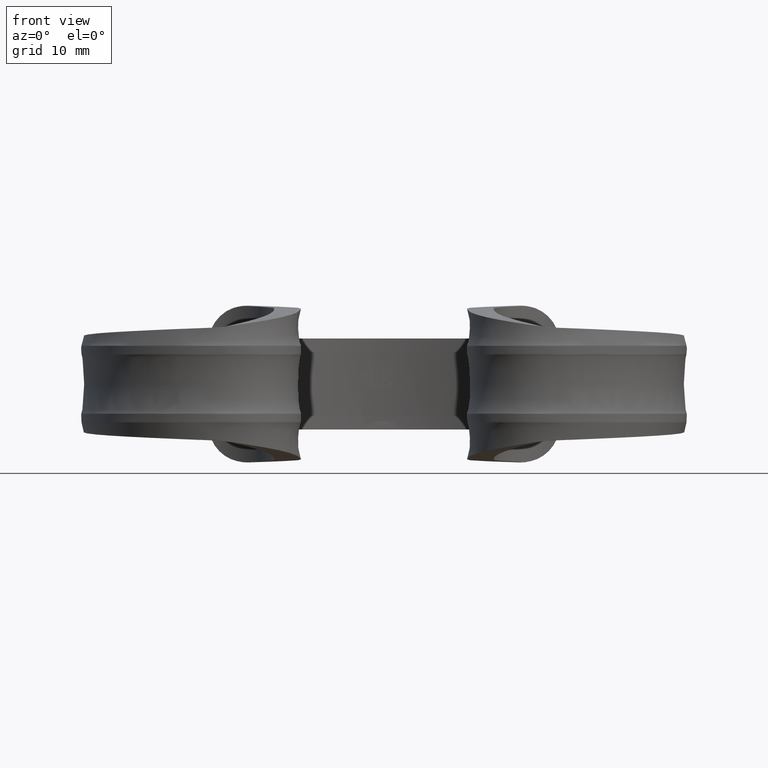
[diagram: clean part render]
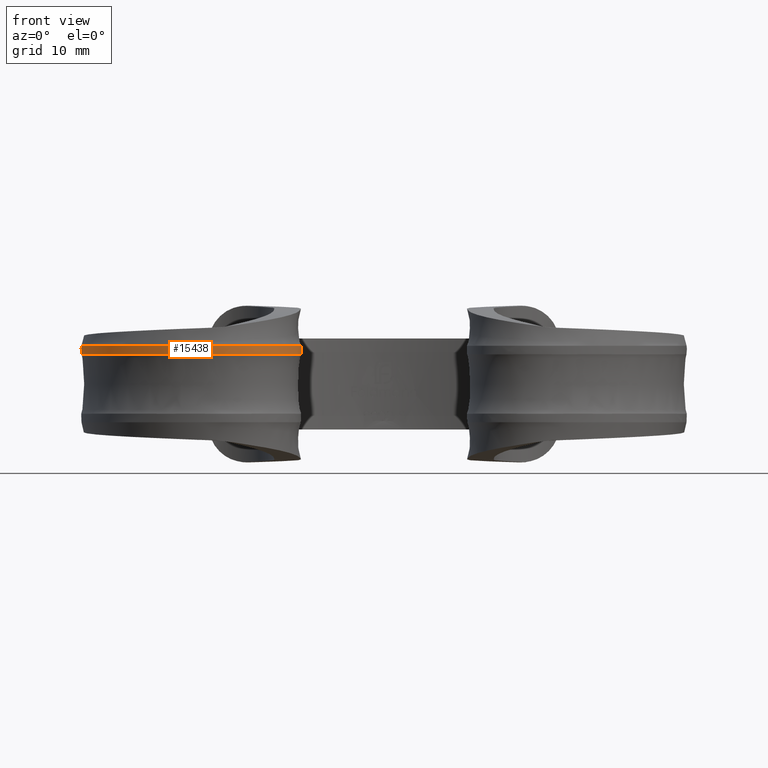
[diagram: same view with one face highlighted and labeled with its STEP entity id]
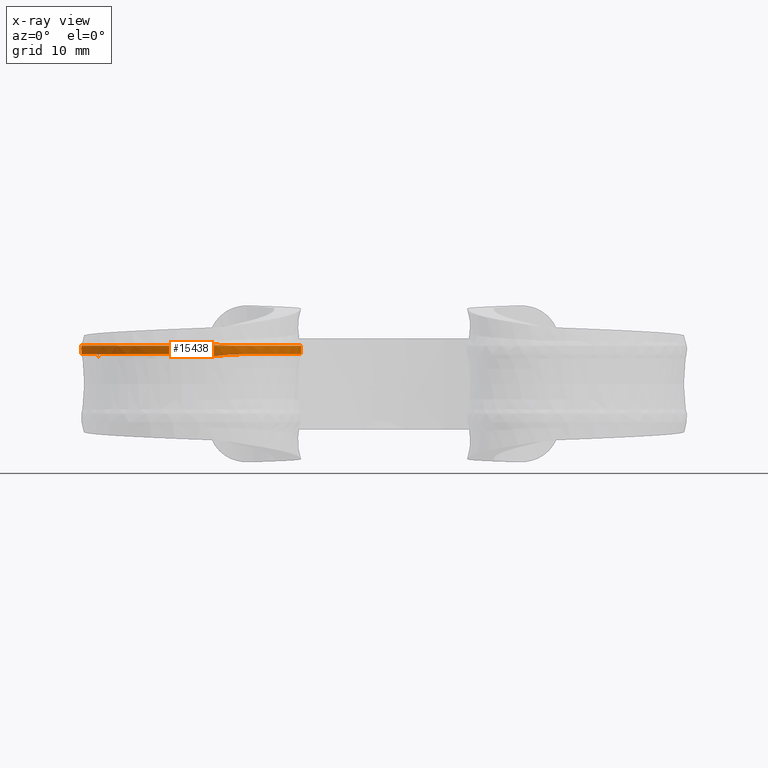
[diagram: x-ray of the same camera — body ghosted, the highlighted face saturated]
A machine part, front view. The second image highlights one B-rep face of the part: STEP entity #15438.
The next image is the same camera in x-ray: the body ghosted, the highlighted face saturated — about 3% of this face is hidden behind the body in this view.
In plain terms, the highlighted face is a freeform B-spline surface patch.
Its self-contained STEP definition (entity closure, byte-faithful):
#34 = CARTESIAN_POINT ( 'NONE',  ( -21.26110369957506308, -2.253478419287941570, 5.132155288128367410 ) ) ;
#55 = CARTESIAN_POINT ( 'NONE',  ( -37.69202677324584272, 2.695678721049922899, -6.000000000000000888 ) ) ;
#123 = CARTESIAN_POINT ( 'NONE',  ( -39.49137171100974797, -11.44399643498221764, -6.562625921643893356 ) ) ;
#173 = CARTESIAN_POINT ( 'NONE',  ( -34.55831373439327336, -19.77816572412975660, 2.312155563151753412 ) ) ;
#230 = CARTESIAN_POINT ( 'NONE',  ( -24.51876381432385799, -24.79738167050054187, 2.469522714805991281 ) ) ;
#260 = CARTESIAN_POINT ( 'NONE',  ( -37.69393478084022320, 2.692159060050231645, 2.590034348595076530 ) ) ;
#386 = CARTESIAN_POINT ( 'NONE',  ( -11.11375909745743407, -16.56140909176754761, 5.042727601769906087 ) ) ;
#536 = CARTESIAN_POINT ( 'NONE',  ( -26.14083609515635587, -24.36683982857131525, 3.919159056223322057 ) ) ;
#540 = CARTESIAN_POINT ( 'NONE',  ( -11.45658815036022915, -10.93732749879126409, -10.04735736631328002 ) ) ;
#598 = CARTESIAN_POINT ( 'NONE',  ( -38.82468577852494462, -12.82622840396133590, 3.919562285860532125 ) ) ;
#613 = CARTESIAN_POINT ( 'NONE',  ( -37.72819115988250616, 2.628732817372665842, 5.159216647835898506 ) ) ;
#661 = CARTESIAN_POINT ( 'NONE',  ( -31.93729838513187502, -21.69310827807554176, 3.919236161389568096 ) ) ;
#717 = CARTESIAN_POINT ( 'NONE',  ( -24.04451919267405913, -24.80336964311780434, 3.918800453114367421 ) ) ;
#764 = CARTESIAN_POINT ( 'NONE',  ( -25.22419698318098824, -24.57963360889019455, 5.051739112483621952 ) ) ;
#782 = CARTESIAN_POINT ( 'NONE',  ( -29.78502034572976243, -22.96737712403890797, 3.918827343399744034 ) ) ;
#790 = EDGE_CURVE ( 'NONE', #16058, #2522, #14006, .T. ) ;
#826 = CARTESIAN_POINT ( 'NONE',  ( -26.94886109582619937, -24.13415723909640320, 5.048799390352638916 ) ) ;
#844 = CARTESIAN_POINT ( 'NONE',  ( -12.71345636728327122, -8.198588107343418585, 3.926055898461035198 ) ) ;
#886 = CARTESIAN_POINT ( 'NONE',  ( -24.16773253050502746, -24.78316152399075634, 5.051113764692928498 ) ) ;
#949 = CARTESIAN_POINT ( 'NONE',  ( -39.35507014284967653, -11.36457669886098643, 5.048583153452116612 ) ) ;
#970 = CARTESIAN_POINT ( 'NONE',  ( -15.03349453489553333, -5.449555945569280802, 3.919421532902941596 ) ) ;
#1024 = EDGE_CURVE ( 'NONE', #2522, #4236, #4232, .T. ) ;
#1034 = CARTESIAN_POINT ( 'NONE',  ( -11.34614499711804392, -17.53348271084570342, 3.922289068414645197 ) ) ;
#1097 = CARTESIAN_POINT ( 'NONE',  ( -11.04301980328091126, -16.13497940424034738, 3.934183329921316030 ) ) ;
#1123 = CARTESIAN_POINT ( 'NONE',  ( -12.34883274573231660, -19.91700462020920881, 9.044002061229733158 ) ) ;
#1307 = CARTESIAN_POINT ( 'NONE',  ( -16.75050109835150280, -4.083732525719363515, 10.31557464167857674 ) ) ;
#1430 = CARTESIAN_POINT ( 'NONE',  ( -21.00296908327094414, -2.247023126008650173, -3.481460833170221481 ) ) ;
#1489 = CARTESIAN_POINT ( 'NONE',  ( -19.32302573568389192, -2.781238056813837733, 3.465198227628801586 ) ) ;
#1523 = CARTESIAN_POINT ( 'NONE',  ( -19.35866790664586645, -2.789123289314391130, 5.058885498673017622 ) ) ;
#1542 = CARTESIAN_POINT ( 'NONE',  ( -24.51876381432385799, -24.79738167050054187, -2.469522714805990393 ) ) ;
#1603 = CARTESIAN_POINT ( 'NONE',  ( -23.00000000000000355, -2.000000000000003553, 3.499999999999995559 ) ) ;
#1647 = CARTESIAN_POINT ( 'NONE',  ( -22.12732321674419111, -2.118092668696839098, 5.210397648475055377 ) ) ;
#1666 = CARTESIAN_POINT ( 'NONE',  ( -15.40865536655226542, -5.063325719178846107, -3.423262263994823140 ) ) ;
#1788 = CARTESIAN_POINT ( 'NONE',  ( -27.66530451502666210, -23.98144417727571209, -7.241250493370641195 ) ) ;
#1893 = CARTESIAN_POINT ( 'NONE',  ( -17.95194819033583755, -3.411117482332665318, 5.050599545146522651 ) ) ;
#1971 = CARTESIAN_POINT ( 'NONE',  ( -16.72395482356200347, -23.93773083205936913, 3.912951211100988758 ) ) ;
#2016 = CARTESIAN_POINT ( 'NONE',  ( -10.97188119781231208, -15.50158976057481475, 5.041178917023939832 ) ) ;
#2032 = CARTESIAN_POINT ( 'NONE',  ( -39.22288568906183315, -0.9310787131546626183, 3.918603044327491070 ) ) ;
#2110 = CARTESIAN_POINT ( 'NONE',  ( -37.81039398270036855, 2.474093938147508887, 5.050583760810661182 ) ) ;
#2195 = CARTESIAN_POINT ( 'NONE',  ( -39.90252149376397739, -4.291758026102882262, 5.051851293075189098 ) ) ;
#2214 = CARTESIAN_POINT ( 'NONE',  ( -21.91433734325553928, -25.01807856344736081, 3.916314557879163605 ) ) ;
#2239 = CARTESIAN_POINT ( 'NONE',  ( -23.00000000000000000, -2.000000000000003553, 3.666060555964667955 ) ) ;
#2258 = CARTESIAN_POINT ( 'NONE',  ( -23.00000000000000000, -2.000000000000003553, 3.666060555964667955 ) ) ;
#2262 = CARTESIAN_POINT ( 'NONE',  ( -16.50200229639300886, -23.84556556468882249, 5.055632794191724066 ) ) ;
#2293 = VECTOR ( 'NONE', #17463, 1000.000000000000000 ) ;
#2331 = CARTESIAN_POINT ( 'NONE',  ( -31.14004414151328248, -22.20376231543207979, 5.050407745356691791 ) ) ;
#2454 = CARTESIAN_POINT ( 'NONE',  ( -11.09992334177055362, -16.48624969632224690, 3.932173613108431720 ) ) ;
#2521 = CARTESIAN_POINT ( 'NONE',  ( -11.90839267000058754, -19.23944999637746633, 3.908806564037010656 ) ) ;
#2522 = VERTEX_POINT ( 'NONE', #7428 ) ;
#2554 = CARTESIAN_POINT ( 'NONE',  ( -13.92908994415916268, -6.500935606355110252, 10.21099872128598030 ) ) ;
#2628 = CARTESIAN_POINT ( 'NONE',  ( -17.95194819033583755, -3.411117482332665318, 5.050599545146522651 ) ) ;
#2670 = CARTESIAN_POINT ( 'NONE',  ( -21.68218290083511235, -25.10561125391181392, 7.377254892948543308 ) ) ;
#2791 = CARTESIAN_POINT ( 'NONE',  ( -11.45658815036022915, -10.93732749879126409, -3.349119122104425639 ) ) ;
#2843 = CARTESIAN_POINT ( 'NONE',  ( -15.40865536655226542, -5.063325719178846107, 3.423262263994823140 ) ) ;
#2873 = CARTESIAN_POINT ( 'NONE',  ( -37.84049022949991326, 2.416760179252072760, 3.919078806292736861 ) ) ;
#2906 = CARTESIAN_POINT ( 'NONE',  ( -31.08790485544037452, -22.40548204515316044, -2.369471874633284791 ) ) ;
#2936 = CARTESIAN_POINT ( 'NONE',  ( -37.72076826109302772, 2.642534941630739542, 3.460238031404824000 ) ) ;
#2964 = CARTESIAN_POINT ( 'NONE',  ( -39.64786795471884062, -1.747538224805099905, -2.062608984872965845 ) ) ;
#3023 = CARTESIAN_POINT ( 'NONE',  ( -10.91370915225136606, -13.42678488165601536, -3.363494197725127144 ) ) ;
#3081 = CARTESIAN_POINT ( 'NONE',  ( -18.06572327422818347, -3.312168967858574842, -10.35785286450811959 ) ) ;
#3269 = CARTESIAN_POINT ( 'NONE',  ( -21.68218290083511235, -25.10561125391181392, -7.377254892948543308 ) ) ;
#3306 = CARTESIAN_POINT ( 'NONE',  ( -10.93910013378240542, -14.42609484266633757, 5.045637360798457927 ) ) ;
#3329 = CARTESIAN_POINT ( 'NONE',  ( -18.80191398473681019, -24.80644302790634725, -7.874722124899618869 ) ) ;
#3340 = CARTESIAN_POINT ( 'NONE',  ( -37.78511298525093309, 2.522130144023249088, 5.050590059619652017 ) ) ;
#3384 = CARTESIAN_POINT ( 'NONE',  ( -16.40272201322805401, -23.77178277615921687, 3.911890465904116709 ) ) ;
#3431 = CARTESIAN_POINT ( 'NONE',  ( -12.03167652732062542, -19.27762809307920477, 5.053567662672334926 ) ) ;
#3444 = ORIENTED_EDGE ( 'NONE', *, *, #790, .T. ) ;
#3485 = CARTESIAN_POINT ( 'NONE',  ( -11.04007543601814945, -12.98915844709043910, 5.053735391228218354 ) ) ;
#3508 = CARTESIAN_POINT ( 'NONE',  ( -40.00118897768921045, -6.553158455514971337, 3.921389095127250535 ) ) ;
#3551 = CARTESIAN_POINT ( 'NONE',  ( -40.01249228995845186, -6.419767932790030329, 5.049472180010228683 ) ) ;
#3570 = CARTESIAN_POINT ( 'NONE',  ( -30.73022336839185442, -22.45073345909680995, 3.919369854620788907 ) ) ;
#3612 = CARTESIAN_POINT ( 'NONE',  ( -13.18024243294011200, -21.10903831950204790, 5.051067336753277459 ) ) ;
#3635 = CARTESIAN_POINT ( 'NONE',  ( -32.51289810732199470, -21.27812581652052515, 3.919105056291235734 ) ) ;
#3677 = CARTESIAN_POINT ( 'NONE',  ( -35.22325501370828249, -18.80081232886399789, 5.050652766097604385 ) ) ;
#3735 = CARTESIAN_POINT ( 'NONE',  ( -20.62054365679173529, -2.390485571399445508, 3.865349115044505623 ) ) ;
#3740 = CARTESIAN_POINT ( 'NONE',  ( -39.87781443015243354, -8.543733136778586257, 5.047417618439158815 ) ) ;
#3801 = CARTESIAN_POINT ( 'NONE',  ( -17.81754154741019036, -24.42328609518120075, 5.049237509370910537 ) ) ;
#3817 = CARTESIAN_POINT ( 'NONE',  ( -11.25124890694383950, -17.18484528926212107, 3.926211436533868504 ) ) ;
#3879 = CARTESIAN_POINT ( 'NONE',  ( -16.70600581049101407, -4.116019036274566112, 3.919284715762802573 ) ) ;
#3940 = CARTESIAN_POINT ( 'NONE',  ( -11.04952312108174262, -12.92594000086001138, 3.913572554710667895 ) ) ;
#4091 = CARTESIAN_POINT ( 'NONE',  ( -16.50574302936130167, -23.92144802972532958, 8.205050579894255236 ) ) ;
#4170 = ORIENTED_EDGE ( 'NONE', *, *, #15524, .F. ) ;
#4214 = CARTESIAN_POINT ( 'NONE',  ( -13.92908994415916268, -6.500935606355110252, 3.403666240428659506 ) ) ;
#4232 = B_SPLINE_CURVE_WITH_KNOTS ( 'NONE', 3,
 ( #12275, #6422, #4913, #10787, #16380, #7997, #13637, #3735, #7936, #7746, #15043, #15104, #9364, #2258 ),
 .UNSPECIFIED., .F., .F.,
 ( 4, 2, 2, 2, 2, 2, 4 ),
 ( 0.000000000000000000, 0.001322608429960969679, 0.001983912644941454410, 0.002645216859921938925, 0.003306521074902423439, 0.003967825289882908821, 0.005290433719843877849 ),
 .UNSPECIFIED. ) ;
#4236 = VERTEX_POINT ( 'NONE', #2239 ) ;
#4265 = CARTESIAN_POINT ( 'NONE',  ( -23.00000000000000355, -2.000000000000003553, -3.500000000000002665 ) ) ;
#4305 = CARTESIAN_POINT ( 'NONE',  ( -17.95194819033583755, -3.411117482332665318, 5.050599545146522651 ) ) ;
#4330 = CARTESIAN_POINT ( 'NONE',  ( -38.47832799420206129, 1.245205594224817691, -6.062492267671355961 ) ) ;
#4360 = CARTESIAN_POINT ( 'NONE',  ( -19.56487299605013064, -2.713610722320654478, 5.061028402304397211 ) ) ;
#4380 = CARTESIAN_POINT ( 'NONE',  ( -34.55831373439327336, -19.77816572412975660, -2.312155563151757409 ) ) ;
#4438 = CARTESIAN_POINT ( 'NONE',  ( -10.92588467141329645, -15.99404666615009774, 3.207234880966408852 ) ) ;
#4537 = CARTESIAN_POINT ( 'NONE',  ( -37.79515529627586545, 2.503041421742871808, 3.866036177794748063 ) ) ;
#4625 = B_SPLINE_CURVE_WITH_KNOTS ( 'NONE', 3,
 ( #1893, #10481, #13219, #7748, #17563, #10543, #10604, #11842, #6363, #13404, #3485, #13461, #3306, #4915, #2016, #14855, #386, #17384, #8921, #4854, #11969, #3431, #7939, #12278, #3612, #6426, #16322, #13641, #9491, #17808, #2262, #3801, #7873, #9429, #16383, #12217, #14918, #17750, #17931, #10789, #886, #9295, #764, #9367, #826, #7809, #15046, #16445, #12090, #16264, #2331, #6622, #5034, #10850, #6561, #3677, #10727, #5101, #8000, #5219, #6493, #17870, #949, #16510, #3740, #13705, #3551, #5160, #2195, #10917, #12156, #13580, #17682, #14990 ),
 .UNSPECIFIED., .F., .F.,
 ( 4, 2, 2, 2, 2, 2, 2, 2, 2, 2, 2, 2, 2, 2, 2, 2, 2, 2, 2, 2, 2, 2, 2, 2, 2, 2, 2, 2, 2, 2, 2, 2, 2, 2, 2, 2, 4 ),
 ( 4.091337135425211056E-18, 0.002163808382444652040, 0.004327616764889300610, 0.008655233529778597751, 0.01081904191222324459, 0.01298285029466789142, 0.01406475448589021224, 0.01514665867711253132, 0.01622856286833485040, 0.01731046705955717122, 0.01839237125077949550, 0.01947427544200181285, 0.02163808382444646489, 0.02271998801566879264, 0.02380189220689111346, 0.02596570058933577244, 0.02812950897178042794, 0.02921141316300275570, 0.03029331735422508345, 0.03245712573666973549, 0.03353902992789206672, 0.03462093411911440488, 0.03678474250155905345, 0.03894855088400369508, 0.04003045507522602631, 0.04111235926644835059, 0.04327616764889299916, 0.04543997603133766161, 0.04760378441378231018, 0.04976759279622697263, 0.05193140117867162120, 0.05625901794356093222, 0.05842282632600558773, 0.06058663470845024324, 0.06275044309089489181, 0.06491425147333954038, 0.06924186823822885140 ),
 .UNSPECIFIED. ) ;
#4699 = ORIENTED_EDGE ( 'NONE', *, *, #10536, .T. ) ;
#4744 = CARTESIAN_POINT ( 'NONE',  ( -19.32302573568389192, -2.781238056813837733, -10.39559468288640431 ) ) ;
#4807 = CARTESIAN_POINT ( 'NONE',  ( -38.48644948102097629, 1.090532016516744473, 3.919117945471005893 ) ) ;
#4854 = CARTESIAN_POINT ( 'NONE',  ( -11.59833022994121876, -18.28910827602094002, 5.052172182206151163 ) ) ;
#4871 = CARTESIAN_POINT ( 'NONE',  ( -39.46359869430173006, -10.79218671337807933, 3.922685189268499517 ) ) ;
#4913 = CARTESIAN_POINT ( 'NONE',  ( -18.74712415014402467, -3.029419884945104169, 3.914844538386695216 ) ) ;
#4915 = CARTESIAN_POINT ( 'NONE',  ( -10.94924070598399801, -15.14477414066770322, 5.042314043975871130 ) ) ;
#4934 = CARTESIAN_POINT ( 'NONE',  ( -37.67090441013078106, -15.44968282942707383, 3.919605009943814444 ) ) ;
#4994 = CARTESIAN_POINT ( 'NONE',  ( -20.84613443098463748, -24.98712609701367882, 3.921456017520013493 ) ) ;
#5034 = CARTESIAN_POINT ( 'NONE',  ( -32.61423084103311254, -21.20162112905745033, 5.050565098343214210 ) ) ;
#5055 = CARTESIAN_POINT ( 'NONE',  ( -24.74988507705133856, -24.67770513086135864, 3.916697986516798125 ) ) ;
#5101 = CARTESIAN_POINT ( 'NONE',  ( -36.56916446040035851, -17.11890017275305809, 5.050536341932091666 ) ) ;
#5118 = CARTESIAN_POINT ( 'NONE',  ( -10.96628583526336165, -15.42854119001452595, 3.933843638279318711 ) ) ;
#5160 = CARTESIAN_POINT ( 'NONE',  ( -39.96606797825631219, -5.001539357454193535, 5.051228776837142220 ) ) ;
#5219 = CARTESIAN_POINT ( 'NONE',  ( -37.71032273360520293, -15.29395115291223384, 5.049942271102932700 ) ) ;
#5300 = CARTESIAN_POINT ( 'NONE',  ( -14.10515586541073674, -22.09922953685276426, 3.919427333011635373 ) ) ;
#5361 = CARTESIAN_POINT ( 'NONE',  ( -11.80871901327368079, -10.15413418347402619, 3.914888443511513216 ) ) ;
#5392 = CARTESIAN_POINT ( 'NONE',  ( -24.51876381432385799, -24.79738167050054187, 7.408568144417972512 ) ) ;
#5457 = CARTESIAN_POINT ( 'NONE',  ( -37.69202677324584272, 2.695678721049922899, 2.000000000000000000 ) ) ;
#5578 = CARTESIAN_POINT ( 'NONE',  ( -23.00000000000000355, -2.000000000000003553, 10.49999999999999289 ) ) ;
#5642 = CARTESIAN_POINT ( 'NONE',  ( -37.69202677324584272, 2.695678721049922899, -2.000000000000000000 ) ) ;
#5695 = CARTESIAN_POINT ( 'NONE',  ( -10.91370915225136606, -13.42678488165601536, 3.363494197725128920 ) ) ;
#5755 = CARTESIAN_POINT ( 'NONE',  ( -18.80191398473681019, -24.80644302790634725, 2.624907374966539919 ) ) ;
#5789 = CARTESIAN_POINT ( 'NONE',  ( -37.71367940901903637, 2.655637875320189689, 3.315887438426524891 ) ) ;
#5816 = CARTESIAN_POINT ( 'NONE',  ( -31.08790485544037452, -22.40548204515316044, 2.369471874633297226 ) ) ;
#5856 = CARTESIAN_POINT ( 'NONE',  ( -37.82356602839575288, 2.449072740430288775, 3.907036088691852704 ) ) ;
#5863 = CARTESIAN_POINT ( 'NONE',  ( -20.19119509989862848, -2.506225207716374026, 5.068328190977240411 ) ) ;
#5887 = CARTESIAN_POINT ( 'NONE',  ( -21.68218290083511235, -25.10561125391181392, 2.459084964316180510 ) ) ;
#5926 = CARTESIAN_POINT ( 'NONE',  ( -18.34467263993106201, -3.209993259136497468, 5.050582610330074829 ) ) ;
#5941 = CARTESIAN_POINT ( 'NONE',  ( -37.81039398270036855, 2.474093938147508887, 5.050583760810661182 ) ) ;
#6078 = CARTESIAN_POINT ( 'NONE',  ( -13.25823302453819963, -21.20993230120077655, -8.817392829770383855 ) ) ;
#6145 = CARTESIAN_POINT ( 'NONE',  ( -13.88099059613083597, -21.90801083646890390, -8.683582067281626848 ) ) ;
#6323 = CARTESIAN_POINT ( 'NONE',  ( -35.61222067461931573, -18.33860201164262449, 3.918834798090497618 ) ) ;
#6363 = CARTESIAN_POINT ( 'NONE',  ( -11.54231436159905400, -10.88360328626497164, 5.056945877072643647 ) ) ;
#6380 = CARTESIAN_POINT ( 'NONE',  ( -26.82350098837754260, -24.17284895457557781, 3.921501392780232909 ) ) ;
#6422 = CARTESIAN_POINT ( 'NONE',  ( -18.34436525395825157, -3.210150679345669111, 3.919067802264035727 ) ) ;
#6426 = CARTESIAN_POINT ( 'NONE',  ( -13.90921839580126829, -21.90494203368209725, 5.050486793563183419 ) ) ;
#6448 = CARTESIAN_POINT ( 'NONE',  ( -28.81983807214735549, -23.43539108117654379, 3.920218299135706186 ) ) ;
#6455 = EDGE_LOOP ( 'NONE', ( #8092, #15323, #4699, #4170, #8642, #3444, #7178, #12040 ) ) ;
#6493 = CARTESIAN_POINT ( 'NONE',  ( -38.04164809738584552, -14.65823680176415778, 5.050484664981563121 ) ) ;
#6512 = CARTESIAN_POINT ( 'NONE',  ( -18.72339906636967299, -24.67914853015535925, 3.934531511697139994 ) ) ;
#6530 = CARTESIAN_POINT ( 'NONE',  ( -37.69793670691436205, 2.684811596777960663, 5.365371517748623198 ) ) ;
#6561 = CARTESIAN_POINT ( 'NONE',  ( -34.23199616320614069, -19.82230728701615874, 5.050541436343540802 ) ) ;
#6580 = CARTESIAN_POINT ( 'NONE',  ( -15.84790477243130624, -4.752067991203164254, 3.920455954945765598 ) ) ;
#6622 = CARTESIAN_POINT ( 'NONE',  ( -32.04058577638063099, -21.62120805900640264, 5.050494228806383212 ) ) ;
#6701 = CARTESIAN_POINT ( 'NONE',  ( -12.64693110597636583, -20.50892531542174879, 3.917465889771909016 ) ) ;
#6851 = CARTESIAN_POINT ( 'NONE',  ( -19.32302573568389192, -2.781238056813837733, 10.39559468288640254 ) ) ;
#6949 = B_SPLINE_CURVE_WITH_KNOTS ( 'NONE', 3,
 ( #14378, #12913, #1647, #34, #17208, #5863, #10115, #4360, #1523, #14319, #5926, #4305 ),
 .UNSPECIFIED., .F., .F.,
 ( 4, 2, 2, 2, 2, 4 ),
 ( 0.000000000000000000, 0.001320939799499857084, 0.002641879598999714168, 0.003302349498749637072, 0.003962819398499559977, 0.005283759197999416193 ),
 .UNSPECIFIED. ) ;
#7092 = CARTESIAN_POINT ( 'NONE',  ( -18.06572327422818347, -3.312168967858574842, -3.452617621502707124 ) ) ;
#7144 = CARTESIAN_POINT ( 'NONE',  ( -16.75050109835150280, -4.083732525719363515, 3.438524880559525432 ) ) ;
#7178 = ORIENTED_EDGE ( 'NONE', *, *, #1024, .T. ) ;
#7218 = CARTESIAN_POINT ( 'NONE',  ( -13.25823302453819963, -21.20993230120077655, 2.939130943256813566 ) ) ;
#7273 = CARTESIAN_POINT ( 'NONE',  ( -12.34883274573231660, -19.91700462020920881, -3.014667353743277101 ) ) ;
#7304 = CARTESIAN_POINT ( 'NONE',  ( -37.75593982507120216, 2.576928725143526666, 3.744546623078311320 ) ) ;
#7332 = CARTESIAN_POINT ( 'NONE',  ( -21.68218290083511235, -25.10561125391181392, -2.459084964316181399 ) ) ;
#7428 = CARTESIAN_POINT ( 'NONE',  ( -17.95194819033584110, -3.411117482332662654, 3.919040727765570331 ) ) ;
#7460 = CARTESIAN_POINT ( 'NONE',  ( -34.55831373439327336, -19.77816572412975660, -6.936466689455267343 ) ) ;
#7644 = CARTESIAN_POINT ( 'NONE',  ( -24.51876381432385799, -24.79738167050054187, -7.408568144417972512 ) ) ;
#7746 = CARTESIAN_POINT ( 'NONE',  ( -21.26325068781658700, -2.256404324511204429, 3.790182472520525536 ) ) ;
#7748 = CARTESIAN_POINT ( 'NONE',  ( -15.53872092554187034, -4.982724926119843190, 5.049464355279718042 ) ) ;
#7809 = CARTESIAN_POINT ( 'NONE',  ( -28.28375158519379795, -23.65964398090248366, 5.048386133211494986 ) ) ;
#7827 = CARTESIAN_POINT ( 'NONE',  ( -39.85857928564607278, -8.698737103870547216, 3.924174796102172014 ) ) ;
#7873 = CARTESIAN_POINT ( 'NONE',  ( -18.49593809934606270, -24.63915884168886805, 5.040161801527070828 ) ) ;
#7894 = CARTESIAN_POINT ( 'NONE',  ( -25.09976164834141343, -24.60642632850871436, 3.917010407950408890 ) ) ;
#7909 = CARTESIAN_POINT ( 'NONE',  ( -37.69202677324584272, 2.695678721049922899, 5.578288710258013872 ) ) ;
#7936 = CARTESIAN_POINT ( 'NONE',  ( -20.83459194994856034, -2.341831818599698245, 3.844142563382049183 ) ) ;
#7939 = CARTESIAN_POINT ( 'NONE',  ( -12.19935246933749973, -19.59789594341346941, 5.053304809017442167 ) ) ;
#7957 = CARTESIAN_POINT ( 'NONE',  ( -20.48972034439126233, -24.96320199895891534, 3.925059470900146952 ) ) ;
#7997 = CARTESIAN_POINT ( 'NONE',  ( -19.98506811645322756, -2.570742907748643891, 3.894843863613664858 ) ) ;
#8000 = CARTESIAN_POINT ( 'NONE',  ( -36.97252675688184809, -16.52657481669430339, 5.049990012535388928 ) ) ;
#8019 = CARTESIAN_POINT ( 'NONE',  ( -10.94062094058225476, -14.35948035861246730, 3.926376583653921504 ) ) ;
#8084 = CARTESIAN_POINT ( 'NONE',  ( -15.57053758373610464, -4.976271332375127088, 3.920334333006378014 ) ) ;
#8092 = ORIENTED_EDGE ( 'NONE', *, *, #12565, .T. ) ;
#8360 = CARTESIAN_POINT ( 'NONE',  ( -31.08790485544037452, -22.40548204515316044, 7.108415623899878355 ) ) ;
#8415 = CARTESIAN_POINT ( 'NONE',  ( -10.91370915225136606, -13.42678488165601536, 10.09048259317538765 ) ) ;
#8477 = EDGE_CURVE ( 'NONE', #12921, #9187, #4625, .T. ) ;
#8532 = CARTESIAN_POINT ( 'NONE',  ( -12.49502603186086880, -8.561858824290659697, 3.383409649648993600 ) ) ;
#8593 = CARTESIAN_POINT ( 'NONE',  ( -39.49137171100974797, -11.44399643498221764, 2.187541973881296897 ) ) ;
#8642 = ORIENTED_EDGE ( 'NONE', *, *, #14575, .T. ) ;
#8654 = CARTESIAN_POINT ( 'NONE',  ( -40.21044561780221471, -6.623500267104228456, -2.125161037602729230 ) ) ;
#8706 = CARTESIAN_POINT ( 'NONE',  ( -11.53727614677191227, -18.37628614047515185, -3.099369234399250050 ) ) ;
#8764 = CARTESIAN_POINT ( 'NONE',  ( -13.92908994415916268, -6.500935606355110252, -3.403666240428659506 ) ) ;
#8798 = CARTESIAN_POINT ( 'NONE',  ( -37.69202677324584272, 2.695678721049922899, 2.299056126640045772 ) ) ;
#8825 = CARTESIAN_POINT ( 'NONE',  ( -10.91370915225136606, -13.42678488165601536, -10.09048259317538410 ) ) ;
#8919 = VERTEX_POINT ( 'NONE', #17851 ) ;
#8921 = CARTESIAN_POINT ( 'NONE',  ( -11.36768518774710301, -17.60654527702635264, 5.049035208825795706 ) ) ;
#9061 = CARTESIAN_POINT ( 'NONE',  ( -17.70691519333325914, -24.36288120103888488, 3.921085350612799392 ) ) ;
#9065 = CARTESIAN_POINT ( 'NONE',  ( -12.34883274573231660, -19.91700462020920881, -9.044002061229782896 ) ) ;
#9122 = CARTESIAN_POINT ( 'NONE',  ( -38.94582640524539840, -12.49079048092060518, 3.919994272244132105 ) ) ;
#9180 = CARTESIAN_POINT ( 'NONE',  ( -33.61552554494929979, -20.38527675701470088, 3.919026784123802454 ) ) ;
#9187 = VERTEX_POINT ( 'NONE', #5941 ) ;
#9252 = CARTESIAN_POINT ( 'NONE',  ( -40.00223231394119239, -6.196801098140231723, 3.920465681075531617 ) ) ;
#9295 = CARTESIAN_POINT ( 'NONE',  ( -24.87248525483471440, -24.65337854629985870, 5.052106320312772958 ) ) ;
#9318 = CARTESIAN_POINT ( 'NONE',  ( -19.42041676497573022, -24.82731300996692170, 3.934503883186960760 ) ) ;
#9364 = CARTESIAN_POINT ( 'NONE',  ( -22.55883027072075464, -2.063810082355051367, 3.612664760840517353 ) ) ;
#9367 = CARTESIAN_POINT ( 'NONE',  ( -26.26681574250006079, -24.33294978077283943, 5.050277937644174209 ) ) ;
#9385 = CARTESIAN_POINT ( 'NONE',  ( -11.17995263939730144, -12.21617495570856349, 3.909383877966130960 ) ) ;
#9429 = CARTESIAN_POINT ( 'NONE',  ( -19.54592496734443685, -24.84858503206459801, 5.041425551192764587 ) ) ;
#9437 = VERTEX_POINT ( 'NONE', #15990 ) ;
#9491 = CARTESIAN_POINT ( 'NONE',  ( -14.98794641847790743, -22.85902461003946584, 5.052088258471481019 ) ) ;
#9509 = CARTESIAN_POINT ( 'NONE',  ( -11.55993466915273871, -10.83145923559454538, 3.909087600668204043 ) ) ;
#9660 = CARTESIAN_POINT ( 'NONE',  ( -27.66530451502666210, -23.98144417727571209, 7.241250493370638530 ) ) ;
#9723 = CARTESIAN_POINT ( 'NONE',  ( -22.12687426917059241, -2.126287505902907604, 10.47557679523485774 ) ) ;
#9950 = CARTESIAN_POINT ( 'NONE',  ( -19.32302573568389192, -2.781238056813837733, -3.465198227628801586 ) ) ;
#10009 = CARTESIAN_POINT ( 'NONE',  ( -40.21044561780221471, -6.623500267104228456, -6.375483112808188579 ) ) ;
#10072 = CARTESIAN_POINT ( 'NONE',  ( -37.56855413898033191, -15.94425631741869864, -6.750850151884226769 ) ) ;
#10115 = CARTESIAN_POINT ( 'NONE',  ( -19.98100789704240654, -2.572053028533874297, 5.065670916293248283 ) ) ;
#10134 = CARTESIAN_POINT ( 'NONE',  ( -10.92588467141329645, -15.99404666615009774, -3.207234880966415513 ) ) ;
#10192 = CARTESIAN_POINT ( 'NONE',  ( -11.45658815036022915, -10.93732749879126409, 3.349119122104425639 ) ) ;
#10224 = CARTESIAN_POINT ( 'NONE',  ( -37.69678074426822434, 2.686932852774617242, 2.881520471317146281 ) ) ;
#10252 = CARTESIAN_POINT ( 'NONE',  ( -22.12687426917059241, -2.126287505902907604, -10.47557679523486307 ) ) ;
#10444 = CARTESIAN_POINT ( 'NONE',  ( -16.75050109835150280, -4.083732525719363515, -10.31557464167857674 ) ) ;
#10481 = CARTESIAN_POINT ( 'NONE',  ( -17.30994966815469382, -3.739901326068021614, 5.050613630838832080 ) ) ;
#10498 = CARTESIAN_POINT ( 'NONE',  ( -17.37562128767918779, -24.23299160289376886, 3.917612399502148346 ) ) ;
#10536 = EDGE_CURVE ( 'NONE', #9187, #8919, #16541, .T. ) ;
#10543 = CARTESIAN_POINT ( 'NONE',  ( -13.50519699285654163, -7.027050079217458389, 5.049987426728578477 ) ) ;
#10580 = CARTESIAN_POINT ( 'NONE',  ( -37.71849775227273227, 2.646700526319987645, 5.210188596582605136 ) ) ;
#10604 = CARTESIAN_POINT ( 'NONE',  ( -12.68900038832905786, -8.238218091884395022, 5.046213469268672647 ) ) ;
#10619 = CARTESIAN_POINT ( 'NONE',  ( -35.14040623114278361, -18.87735070144884730, 3.918942360792760038 ) ) ;
#10680 = CARTESIAN_POINT ( 'NONE',  ( -39.27990889400871310, -11.47733158568386003, 3.921487994905116015 ) ) ;
#10727 = CARTESIAN_POINT ( 'NONE',  ( -35.69460732042772833, -18.25634130939041455, 5.050811233937431588 ) ) ;
#10743 = CARTESIAN_POINT ( 'NONE',  ( -38.42093374453271082, -13.82374145376905794, 3.918986852625031325 ) ) ;
#10787 = CARTESIAN_POINT ( 'NONE',  ( -19.36190512260322194, -2.787899094359108432, 3.905731500274963519 ) ) ;
#10789 = CARTESIAN_POINT ( 'NONE',  ( -23.81485796359329754, -24.83915840878008296, 5.050170897378706059 ) ) ;
#10850 = CARTESIAN_POINT ( 'NONE',  ( -33.70994760632229514, -20.30218426638171181, 5.050610902117812273 ) ) ;
#10917 = CARTESIAN_POINT ( 'NONE',  ( -39.69292787855306415, -2.870830645134722303, 5.052077758012833542 ) ) ;
#10936 = CARTESIAN_POINT ( 'NONE',  ( -15.48700350639522583, -23.21816469515285775, 3.914157914056609400 ) ) ;
#10994 = CARTESIAN_POINT ( 'NONE',  ( -13.84995058190197703, -21.84405498140840152, 3.919176978880266837 ) ) ;
#11079 = CARTESIAN_POINT ( 'NONE',  ( -10.92588467141329645, -15.99404666615009774, 9.621704642899231885 ) ) ;
#11141 = CARTESIAN_POINT ( 'NONE',  ( -40.21044561780221471, -6.623500267104228456, 6.375483112808188579 ) ) ;
#11260 = CARTESIAN_POINT ( 'NONE',  ( -23.00000000000000000, -2.000000000000003553, -10.50000000000000000 ) ) ;
#11325 = CARTESIAN_POINT ( 'NONE',  ( -15.40865536655226542, -5.063325719178846107, 10.26978679198447075 ) ) ;
#11382 = CARTESIAN_POINT ( 'NONE',  ( -37.56855413898033191, -15.94425631741869864, 2.250283383961409811 ) ) ;
#11448 = CARTESIAN_POINT ( 'NONE',  ( -15.07308246801133933, -22.95855655594039035, 2.818580897531503204 ) ) ;
#11508 = CARTESIAN_POINT ( 'NONE',  ( -21.00296908327094414, -2.247023126008650173, 3.481460833170221925 ) ) ;
#11560 = CARTESIAN_POINT ( 'NONE',  ( -15.07308246801133933, -22.95855655594039035, -2.818580897531501872 ) ) ;
#11616 = CARTESIAN_POINT ( 'NONE',  ( -15.07308246801133933, -22.95855655594039035, -8.455742692594512278 ) ) ;
#11842 = CARTESIAN_POINT ( 'NONE',  ( -11.78857356544542334, -10.20465451649333843, 5.053450532317503630 ) ) ;
#11892 = VERTEX_POINT ( 'NONE', #14454 ) ;
#11928 = CARTESIAN_POINT ( 'NONE',  ( -35.83942657381947328, -18.06357403100287584, 3.918806942480653976 ) ) ;
#11969 = CARTESIAN_POINT ( 'NONE',  ( -11.73123132000831781, -18.62328354496280269, 5.052967079420351837 ) ) ;
#11988 = CARTESIAN_POINT ( 'NONE',  ( -39.75292371241604883, -9.402886984890772126, 3.924015383600904627 ) ) ;
#12040 = ORIENTED_EDGE ( 'NONE', *, *, #16208, .T. ) ;
#12047 = CARTESIAN_POINT ( 'NONE',  ( -39.76123035517220217, -3.014667000344952275, 3.916745762985077928 ) ) ;
#12090 = CARTESIAN_POINT ( 'NONE',  ( -30.20890163800243045, -22.74453040020128469, 5.050486680496138803 ) ) ;
#12110 = CARTESIAN_POINT ( 'NONE',  ( -34.89522153256879022, -19.14157730202574470, 3.919021737736809285 ) ) ;
#12156 = CARTESIAN_POINT ( 'NONE',  ( -39.54829672888030956, -2.170576330195728154, 5.051541009251171666 ) ) ;
#12173 = CARTESIAN_POINT ( 'NONE',  ( -38.18934308460404736, 1.745729687948500031, 3.919255835218197426 ) ) ;
#12217 = CARTESIAN_POINT ( 'NONE',  ( -20.61822411877572847, -24.97310695185165486, 5.047613333593296225 ) ) ;
#12275 = CARTESIAN_POINT ( 'NONE',  ( -17.95194819033584110, -3.411117482332662654, 3.919040727765570331 ) ) ;
#12278 = CARTESIAN_POINT ( 'NONE',  ( -12.74853824867475183, -20.52676058025638639, 5.051951990221986044 ) ) ;
#12338 = LINE ( 'NONE', #11260, #17389 ) ;
#12364 = CARTESIAN_POINT ( 'NONE',  ( -14.63584624511521071, -22.57678200101537058, 3.918419978393214098 ) ) ;
#12421 = CARTESIAN_POINT ( 'NONE',  ( -10.94620684617907180, -15.07339932655951209, 3.931860435254057151 ) ) ;
#12511 = CARTESIAN_POINT ( 'NONE',  ( -37.69202677324584272, 2.695678721049922899, 6.000000000000000888 ) ) ;
#12565 = EDGE_CURVE ( 'NONE', #9437, #12921, #6949, .T. ) ;
#12689 = DIRECTION ( 'NONE',  ( 0.000000000000000000, 0.000000000000000000, 1.000000000000000000 ) ) ;
#12696 = CARTESIAN_POINT ( 'NONE',  ( -38.47832799420206129, 1.245205594224817691, 6.062492267671355961 ) ) ;
#12757 = CARTESIAN_POINT ( 'NONE',  ( -16.75050109835150280, -4.083732525719363515, -3.438524880559525432 ) ) ;
#12823 = CARTESIAN_POINT ( 'NONE',  ( -22.12687426917059241, -2.126287505902907604, -3.491858931744955097 ) ) ;
#12875 = CARTESIAN_POINT ( 'NONE',  ( -39.64786795471884062, -1.747538224805099905, 2.062608984872965845 ) ) ;
#12913 = CARTESIAN_POINT ( 'NONE',  ( -22.56488349901610135, -2.062934553119011749, 5.241626626815854451 ) ) ;
#12921 = VERTEX_POINT ( 'NONE', #2628 ) ;
#12937 = CARTESIAN_POINT ( 'NONE',  ( -18.80191398473681019, -24.80644302790634725, -2.624907374966539919 ) ) ;
#12956 = B_SPLINE_SURFACE_WITH_KNOTS ( 'NONE', 3, 3, ( 
 ( #12511, #12696, #15027, #11141, #16798, #16417, #13929, #8360, #9660, #5392, #2670, #18291, #4091, #16924, #15456, #18235, #1123, #15335, #11079, #8415, #14048, #16741, #2554, #11325, #1307, #18172, #6851, #14111, #9723, #5578 ),
 ( #5457, #18347, #12875, #17170, #8593, #11382, #173, #5816, #17042, #230, #5887, #5755, #16983, #11448, #15746, #7218, #14339, #15687, #4438, #5695, #10192, #8532, #4214, #2843, #7144, #14168, #1489, #11508, #15632, #1603 ),
 ( #5642, #14395, #2964, #8654, #15573, #15800, #4380, #2906, #14280, #1542, #7332, #12937, #17227, #11560, #18405, #14222, #7273, #8706, #10134, #3023, #2791, #12998, #8764, #1666, #12757, #7092, #9950, #1430, #12823, #4265 ),
 ( #55, #4330, #17105, #10009, #123, #10072, #7460, #17285, #1788, #7644, #3269, #3329, #17523, #11616, #6145, #6078, #9065, #14573, #15921, #8825, #540, #13244, #17341, #13118, #10444, #3081, #4744, #15981, #10252, #16113 ) ),
 .UNSPECIFIED., .F., .F., .F.,
 ( 4, 4 ),
 ( 4, 1, 1, 1, 1, 1, 1, 1, 1, 1, 1, 1, 1, 1, 1, 1, 1, 1, 1, 1, 1, 1, 1, 1, 1, 1, 1, 4 ),
 ( 0.000000000000000000, 1.000000000000000000 ),
 ( 0.000000000000000000, 0.06539967293850375285, 0.1310134582907138134, 0.1969286880040111709, 0.2630306784144125776, 0.3294621945637603577, 0.3960514413993531102, 0.4407099072309489385, 0.4854891513282488802, 0.5300835114657409530, 0.5620208121376846222, 0.5938381508324824809, 0.6235939193939324943, 0.6280600807907869010, 0.6549428722266097402, 0.6594482536907083636, 0.6894272070168880884, 0.7217964294352726684, 0.7544489891661945169, 0.7890623973560945137, 0.8240956374776282622, 0.8592822234271237924, 0.8911322572059308111, 0.9075463573213756741, 0.9273154124223664807, 0.9537426879965570370, 0.9636697494635690919, 1.000000000000000000 ),
 .UNSPECIFIED. ) ;
#12998 = CARTESIAN_POINT ( 'NONE',  ( -12.49502603186086880, -8.561858824290659697, -3.383409649648993600 ) ) ;
#13089 = CARTESIAN_POINT ( 'NONE',  ( -37.74533590102611669, 2.596709526878308250, 3.672491383521184538 ) ) ;
#13118 = CARTESIAN_POINT ( 'NONE',  ( -15.40865536655226542, -5.063325719178846107, -10.26978679198447075 ) ) ;
#13219 = CARTESIAN_POINT ( 'NONE',  ( -16.69569122565904351, -4.122225644994188087, 5.050425538181527507 ) ) ;
#13244 = CARTESIAN_POINT ( 'NONE',  ( -12.49502603186086880, -8.561858824290659697, -10.15022894894697814 ) ) ;
#13303 = CARTESIAN_POINT ( 'NONE',  ( -37.69202677324584272, 2.695678721049922899, 6.000000000000000000 ) ) ;
#13362 = CARTESIAN_POINT ( 'NONE',  ( -15.78509555444597012, -23.41241874563834102, 3.912665853988057219 ) ) ;
#13404 = CARTESIAN_POINT ( 'NONE',  ( -11.16715221159099158, -12.27589920076328411, 5.056483350085060557 ) ) ;
#13461 = CARTESIAN_POINT ( 'NONE',  ( -10.95174654636683620, -14.06488651771408094, 5.047839034128201341 ) ) ;
#13480 = CARTESIAN_POINT ( 'NONE',  ( -39.97808770282412638, -7.267978921973975659, 3.922745744021915115 ) ) ;
#13538 = CARTESIAN_POINT ( 'NONE',  ( -23.68922003928803122, -24.85726848339159289, 3.919976537309084907 ) ) ;
#13580 = CARTESIAN_POINT ( 'NONE',  ( -38.99956166615208986, -0.1134937919346066387, 5.050470309961832882 ) ) ;
#13597 = CARTESIAN_POINT ( 'NONE',  ( -28.16309769825467058, -23.70741286761776223, 3.922818372431901235 ) ) ;
#13637 = CARTESIAN_POINT ( 'NONE',  ( -20.19509499033903310, -2.505073229114982425, 3.890537954105901974 ) ) ;
#13641 = CARTESIAN_POINT ( 'NONE',  ( -14.70622888242157877, -22.63538383754466210, 5.051156182323029320 ) ) ;
#13679 = CARTESIAN_POINT ( 'NONE',  ( -37.69434655407037837, 2.691399470736680399, 5.471677198292390187 ) ) ;
#13705 = CARTESIAN_POINT ( 'NONE',  ( -39.99497667680010693, -7.128208654238845199, 5.048312042943013722 ) ) ;
#13842 = CARTESIAN_POINT ( 'NONE',  ( -14.77317315577049328, -5.699204578884510042, 3.918870728265197112 ) ) ;
#13929 = CARTESIAN_POINT ( 'NONE',  ( -34.55831373439327336, -19.77816572412975660, 6.936466689455264678 ) ) ;
#14006 = B_SPLINE_CURVE_WITH_KNOTS ( 'NONE', 3,
 ( #16340, #12173, #4807, #14754, #2032, #12047, #17580, #9252, #3508, #13480, #16165, #7827, #11988, #4871, #10680, #9122, #598, #17704, #10743, #4934, #14813, #11928, #6323, #10619, #12110, #16221, #9180, #3635, #661, #14873, #3570, #16281, #782, #6448, #13597, #6380, #536, #7894, #5055, #717, #13538, #15010, #2214, #4994, #7957, #14938, #9318, #6512, #16400, #9061, #10498, #1971, #3384, #13362, #10936, #17886, #12364, #5300, #10994, #6701, #2521, #1034, #3817, #2454, #1097, #5118, #12421, #8019, #15067, #3940, #9385, #9509, #5361, #844, #18014, #13842, #970, #8084, #6580, #3879, #16531, #15310 ),
 .UNSPECIFIED., .F., .F.,
 ( 4, 2, 2, 2, 2, 2, 2, 2, 2, 2, 2, 2, 2, 2, 2, 2, 2, 2, 2, 2, 2, 2, 2, 2, 2, 2, 2, 2, 2, 2, 2, 2, 2, 2, 2, 2, 2, 2, 2, 2, 4 ),
 ( 0.0003532551760035298571, 0.002510546337916674461, 0.004667837499829819228, 0.008982419823656108762, 0.01006106540461267768, 0.01113971098556925006, 0.01329700214748239136, 0.01545429330939552919, 0.01653293889035210504, 0.01761158447130867222, 0.02192616679513497563, 0.02300481237609155322, 0.02408345795704813427, 0.02624074911896128945, 0.02839804028087444462, 0.02947668586183102568, 0.03055533144278760327, 0.03271262260470075844, 0.03486991376661391362, 0.03594855934757048427, 0.03702720492852705492, 0.03918449609044019621, 0.04026314167139678074, 0.04134178725235336527, 0.04242043283330993592, 0.04349907841426652044, 0.04457772399522309803, 0.04565636957617968256, 0.04673501515713626014, 0.04781366073809283773, 0.05212824306191912727, 0.05320688864287569791, 0.05428553422383227550, 0.05536417980478884615, 0.05644282538574541680, 0.05860011654765857197, 0.06075740770957172021, 0.06507199003339804444, 0.06615063561435460815, 0.06722928119531119961, 0.06938657235722435479 ),
 .UNSPECIFIED. ) ;
#14048 = CARTESIAN_POINT ( 'NONE',  ( -11.45658815036022915, -10.93732749879126409, 10.04735736631327470 ) ) ;
#14111 = CARTESIAN_POINT ( 'NONE',  ( -21.00296908327094414, -2.247023126008650173, 10.44438249951066844 ) ) ;
#14168 = CARTESIAN_POINT ( 'NONE',  ( -18.06572327422818347, -3.312168967858574842, 3.452617621502707124 ) ) ;
#14222 = CARTESIAN_POINT ( 'NONE',  ( -13.25823302453819963, -21.20993230120077655, -2.939130943256784700 ) ) ;
#14280 = CARTESIAN_POINT ( 'NONE',  ( -27.66530451502666210, -23.98144417727571209, -2.413750164456881286 ) ) ;
#14313 = CARTESIAN_POINT ( 'NONE',  ( -37.78362391043177837, 2.524806213729184012, 3.837579991178619476 ) ) ;
#14319 = CARTESIAN_POINT ( 'NONE',  ( -18.74571858672807068, -3.030068126707532006, 5.053213831517987309 ) ) ;
#14339 = CARTESIAN_POINT ( 'NONE',  ( -12.34883274573231660, -19.91700462020920881, 3.014667353743230915 ) ) ;
#14378 = CARTESIAN_POINT ( 'NONE',  ( -23.00000000000000000, -2.000000000000003553, 5.208712152522095629 ) ) ;
#14395 = CARTESIAN_POINT ( 'NONE',  ( -38.47832799420206129, 1.245205594224817691, -2.020830755890451691 ) ) ;
#14454 = CARTESIAN_POINT ( 'NONE',  ( -37.69202677324584272, 2.695678721049922899, 2.299056126640045772 ) ) ;
#14499 = LINE ( 'NONE', #13303, #2293 ) ;
#14573 = CARTESIAN_POINT ( 'NONE',  ( -11.53727614677191227, -18.37628614047515185, -9.298107703197771912 ) ) ;
#14575 = EDGE_CURVE ( 'NONE', #11892, #16058, #14678, .T. ) ;
#14678 = B_SPLINE_CURVE_WITH_KNOTS ( 'NONE', 3,
 ( #8798, #260, #10224, #5789, #2936, #13089, #7304, #14313, #4537, #5856, #2873, #15774 ),
 .UNSPECIFIED., .F., .F.,
 ( 4, 2, 2, 2, 2, 4 ),
 ( 8.673617379884034509E-19, 0.0008728855850460280098, 0.001309328377569041364, 0.001527549773830548258, 0.001636660471961304307, 0.001745771170092060140 ),
 .UNSPECIFIED. ) ;
#14754 = CARTESIAN_POINT ( 'NONE',  ( -39.00259399716723152, -0.2460991565246327117, 3.918627147418547896 ) ) ;
#14813 = CARTESIAN_POINT ( 'NONE',  ( -36.93264934510546738, -16.66062070332552025, 3.919219855166835575 ) ) ;
#14855 = CARTESIAN_POINT ( 'NONE',  ( -11.05404421375632396, -16.20992116330593902, 5.041293711086702878 ) ) ;
#14873 = CARTESIAN_POINT ( 'NONE',  ( -31.03666439239274766, -22.26737615373150803, 3.919356478534170130 ) ) ;
#14918 = CARTESIAN_POINT ( 'NONE',  ( -20.97538611441371259, -24.99358290436038388, 5.049724978607188497 ) ) ;
#14938 = CARTESIAN_POINT ( 'NONE',  ( -19.77606177925535746, -24.88329484076895071, 3.931584797762160299 ) ) ;
#14990 = CARTESIAN_POINT ( 'NONE',  ( -37.81039398270036855, 2.474093938147508887, 5.050583760810661182 ) ) ;
#15010 = CARTESIAN_POINT ( 'NONE',  ( -22.62505193387188029, -24.98288538835423367, 3.920932127453364835 ) ) ;
#15027 = CARTESIAN_POINT ( 'NONE',  ( -39.64786795471884062, -1.747538224805099905, 6.187826954618893538 ) ) ;
#15043 = CARTESIAN_POINT ( 'NONE',  ( -21.47809199873302788, -2.219570231318344078, 3.757196470830924007 ) ) ;
#15046 = CARTESIAN_POINT ( 'NONE',  ( -28.93650988247570410, -23.38369408273992178, 5.050101681545459797 ) ) ;
#15067 = CARTESIAN_POINT ( 'NONE',  ( -10.95527427209910165, -13.99936868952505442, 3.922837667425064900 ) ) ;
#15104 = CARTESIAN_POINT ( 'NONE',  ( -22.12467881296324634, -2.118494018322732764, 3.663736926204856470 ) ) ;
#15310 = CARTESIAN_POINT ( 'NONE',  ( -17.95194819033584110, -3.411117482332662654, 3.919040727765570331 ) ) ;
#15323 = ORIENTED_EDGE ( 'NONE', *, *, #8477, .T. ) ;
#15335 = CARTESIAN_POINT ( 'NONE',  ( -11.53727614677191227, -18.37628614047515185, 9.298107703197795004 ) ) ;
#15438 = ADVANCED_FACE ( 'NONE', ( #18262 ), #12956, .T. ) ;
#15456 = CARTESIAN_POINT ( 'NONE',  ( -13.88099059613083597, -21.90801083646890390, 8.683582067281625072 ) ) ;
#15524 = EDGE_CURVE ( 'NONE', #11892, #8919, #14499, .T. ) ;
#15573 = CARTESIAN_POINT ( 'NONE',  ( -39.49137171100974797, -11.44399643498221764, -2.187541973881297341 ) ) ;
#15632 = CARTESIAN_POINT ( 'NONE',  ( -22.12687426917059241, -2.126287505902907604, 3.491858931744951544 ) ) ;
#15687 = CARTESIAN_POINT ( 'NONE',  ( -11.53727614677191227, -18.37628614047515185, 3.099369234399271367 ) ) ;
#15746 = CARTESIAN_POINT ( 'NONE',  ( -13.88099059613083597, -21.90801083646890390, 2.894527355760542431 ) ) ;
#15774 = CARTESIAN_POINT ( 'NONE',  ( -37.85768422039271996, 2.383686945114951161, 3.919087531558130610 ) ) ;
#15800 = CARTESIAN_POINT ( 'NONE',  ( -37.56855413898033191, -15.94425631741869864, -2.250283383961408923 ) ) ;
#15921 = CARTESIAN_POINT ( 'NONE',  ( -10.92588467141329645, -15.99404666615009774, -9.621704642899238991 ) ) ;
#15981 = CARTESIAN_POINT ( 'NONE',  ( -21.00296908327094414, -2.247023126008650173, -10.44438249951066666 ) ) ;
#15990 = CARTESIAN_POINT ( 'NONE',  ( -23.00000000000000000, -2.000000000000003553, 5.208712152522095629 ) ) ;
#16058 = VERTEX_POINT ( 'NONE', #17363 ) ;
#16113 = CARTESIAN_POINT ( 'NONE',  ( -23.00000000000000355, -2.000000000000003553, -10.50000000000000000 ) ) ;
#16165 = CARTESIAN_POINT ( 'NONE',  ( -39.95593711435947171, -7.627625097713263358, 3.923246405642312418 ) ) ;
#16208 = EDGE_CURVE ( 'NONE', #4236, #9437, #12338, .T. ) ;
#16221 = CARTESIAN_POINT ( 'NONE',  ( -34.14254605841796320, -19.90740083288154594, 3.919131159737115233 ) ) ;
#16264 = CARTESIAN_POINT ( 'NONE',  ( -30.83209260544214914, -22.39068792724693679, 5.050389972731737842 ) ) ;
#16281 = CARTESIAN_POINT ( 'NONE',  ( -30.10445087255398988, -22.80075935986470270, 3.919168707783401207 ) ) ;
#16322 = CARTESIAN_POINT ( 'NONE',  ( -14.16702206430321986, -22.15859668727367904, 5.050364893915010533 ) ) ;
#16340 = CARTESIAN_POINT ( 'NONE',  ( -37.85768422039271996, 2.383686945114951161, 3.919087531558130610 ) ) ;
#16380 = CARTESIAN_POINT ( 'NONE',  ( -19.56851979352292403, -2.712300428946886388, 3.902299470642696111 ) ) ;
#16383 = CARTESIAN_POINT ( 'NONE',  ( -19.90212657771283489, -24.90053578868539574, 5.043453286090010756 ) ) ;
#16400 = CARTESIAN_POINT ( 'NONE',  ( -18.38076803674190529, -24.58606098536963813, 3.930461914968678805 ) ) ;
#16417 = CARTESIAN_POINT ( 'NONE',  ( -37.56855413898033191, -15.94425631741869864, 6.750850151884228545 ) ) ;
#16445 = CARTESIAN_POINT ( 'NONE',  ( -29.89356903530477894, -22.91160624309794258, 5.050745725372393302 ) ) ;
#16510 = CARTESIAN_POINT ( 'NONE',  ( -39.77795715021050427, -9.253008579857063154, 5.047447600099925324 ) ) ;
#16531 = CARTESIAN_POINT ( 'NONE',  ( -17.31156024638746516, -3.739076507811102346, 3.919018247196583982 ) ) ;
#16541 = B_SPLINE_CURVE_WITH_KNOTS ( 'NONE', 3,
 ( #2110, #3340, #17597, #613, #10580, #6530, #13679, #7909 ),
 .UNSPECIFIED., .F., .F.,
 ( 4, 2, 2, 4 ),
 ( 1.782317573739918574E-17, 0.0001603301766892507461, 0.0003206603533784836571, 0.0006413207067569497502 ),
 .UNSPECIFIED. ) ;
#16741 = CARTESIAN_POINT ( 'NONE',  ( -12.49502603186086880, -8.561858824290659697, 10.15022894894697991 ) ) ;
#16798 = CARTESIAN_POINT ( 'NONE',  ( -39.49137171100974797, -11.44399643498221764, 6.562625921643893356 ) ) ;
#16924 = CARTESIAN_POINT ( 'NONE',  ( -15.07308246801133933, -22.95855655594039035, 8.455742692594514054 ) ) ;
#16983 = CARTESIAN_POINT ( 'NONE',  ( -16.50574302936130167, -23.92144802972532958, 2.735016859964751745 ) ) ;
#17042 = CARTESIAN_POINT ( 'NONE',  ( -27.66530451502666210, -23.98144417727571209, 2.413750164456878178 ) ) ;
#17105 = CARTESIAN_POINT ( 'NONE',  ( -39.64786795471884062, -1.747538224805099905, -6.187826954618893538 ) ) ;
#17170 = CARTESIAN_POINT ( 'NONE',  ( -40.21044561780221471, -6.623500267104228456, 2.125161037602729230 ) ) ;
#17208 = CARTESIAN_POINT ( 'NONE',  ( -20.83037923583216156, -2.333769094518728604, 5.091805439498173769 ) ) ;
#17227 = CARTESIAN_POINT ( 'NONE',  ( -16.50574302936130167, -23.92144802972532958, -2.735016859964752189 ) ) ;
#17285 = CARTESIAN_POINT ( 'NONE',  ( -31.08790485544037452, -22.40548204515316044, -7.108415623899865921 ) ) ;
#17341 = CARTESIAN_POINT ( 'NONE',  ( -13.92908994415916268, -6.500935606355110252, -10.21099872128598030 ) ) ;
#17363 = CARTESIAN_POINT ( 'NONE',  ( -37.85768422039271996, 2.383686945114951161, 3.919087531558130610 ) ) ;
#17384 = CARTESIAN_POINT ( 'NONE',  ( -11.27035243955355703, -17.25904639745752434, 5.046594406468559058 ) ) ;
#17389 = VECTOR ( 'NONE', #12689, 1000.000000000000000 ) ;
#17463 = DIRECTION ( 'NONE',  ( 0.000000000000000000, 0.000000000000000000, 1.000000000000000000 ) ) ;
#17523 = CARTESIAN_POINT ( 'NONE',  ( -16.50574302936130167, -23.92144802972532958, -8.205050579894255236 ) ) ;
#17563 = CARTESIAN_POINT ( 'NONE',  ( -14.99828447466989978, -5.461721608504089609, 5.050866846617257266 ) ) ;
#17580 = CARTESIAN_POINT ( 'NONE',  ( -39.95657966613299550, -4.420110043185378146, 3.916680404550713757 ) ) ;
#17597 = CARTESIAN_POINT ( 'NONE',  ( -37.76092888541889891, 2.567555175923389221, 5.078004714218005589 ) ) ;
#17682 = CARTESIAN_POINT ( 'NONE',  ( -38.47822891060925343, 1.205146533985335333, 5.050417368459120482 ) ) ;
#17704 = CARTESIAN_POINT ( 'NONE',  ( -38.56247112042444769, -13.49224994042532622, 3.919044589321750927 ) ) ;
#17750 = CARTESIAN_POINT ( 'NONE',  ( -22.04461265929921865, -25.01461863912840045, 5.052042339887777622 ) ) ;
#17808 = CARTESIAN_POINT ( 'NONE',  ( -15.86878318939998245, -23.48649443485919619, 5.054833632247990316 ) ) ;
#17851 = CARTESIAN_POINT ( 'NONE',  ( -37.69202677324584272, 2.695678721049922899, 5.578288710258013872 ) ) ;
#17870 = CARTESIAN_POINT ( 'NONE',  ( -38.91897137796563300, -12.71513380665472859, 5.050779800368396799 ) ) ;
#17886 = CARTESIAN_POINT ( 'NONE',  ( -14.91237318710713389, -22.80035407816741966, 3.917052856522873494 ) ) ;
#17931 = CARTESIAN_POINT ( 'NONE',  ( -22.75429831914177825, -24.97268696473542349, 5.049357231028640314 ) ) ;
#18014 = CARTESIAN_POINT ( 'NONE',  ( -13.53113092001300011, -6.994285417928509219, 3.919824038911231767 ) ) ;
#18172 = CARTESIAN_POINT ( 'NONE',  ( -18.06572327422818347, -3.312168967858574842, 10.35785286450811959 ) ) ;
#18235 = CARTESIAN_POINT ( 'NONE',  ( -13.25823302453819963, -21.20993230120077655, 8.817392829770415830 ) ) ;
#18262 = FACE_OUTER_BOUND ( 'NONE', #6455, .T. ) ;
#18291 = CARTESIAN_POINT ( 'NONE',  ( -18.80191398473681019, -24.80644302790634725, 7.874722124899618869 ) ) ;
#18347 = CARTESIAN_POINT ( 'NONE',  ( -38.47832799420206129, 1.245205594224817691, 2.020830755890451691 ) ) ;
#18405 = CARTESIAN_POINT ( 'NONE',  ( -13.88099059613083597, -21.90801083646890390, -2.894527355760543763 ) ) ;